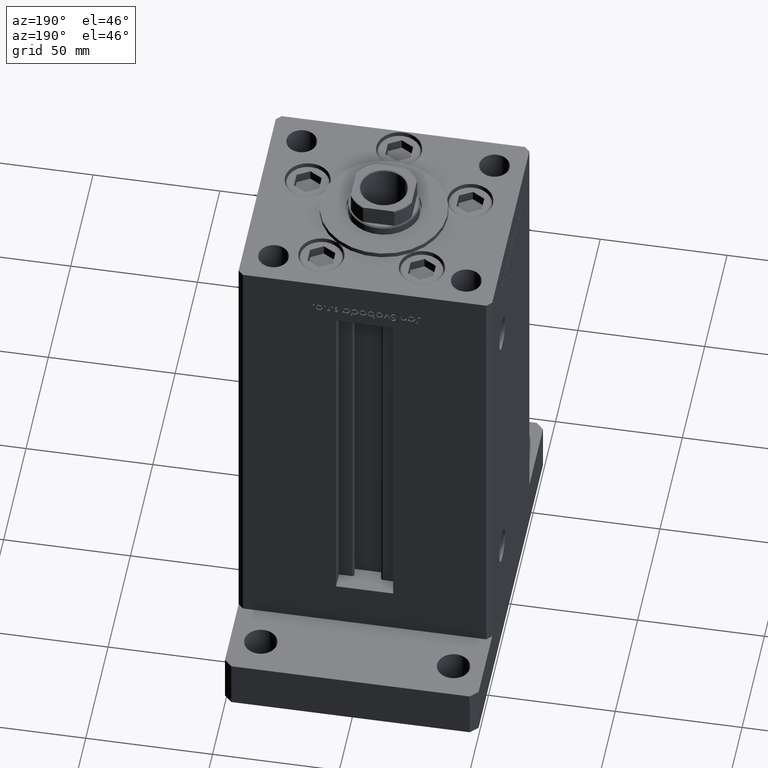
[diagram: clean part render]
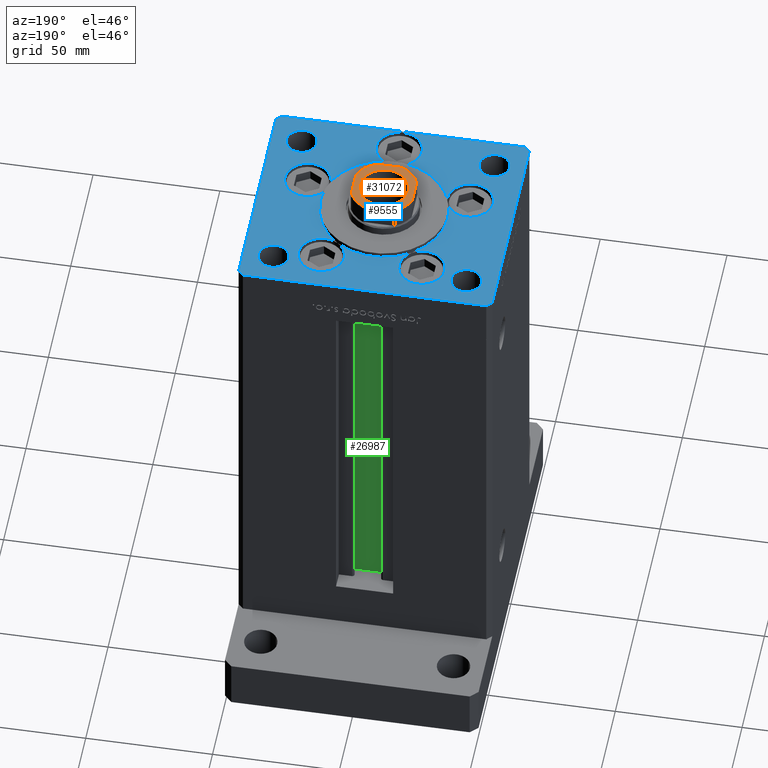
[diagram: same view with three faces highlighted in distinct colors, each labeled with its STEP entity id]
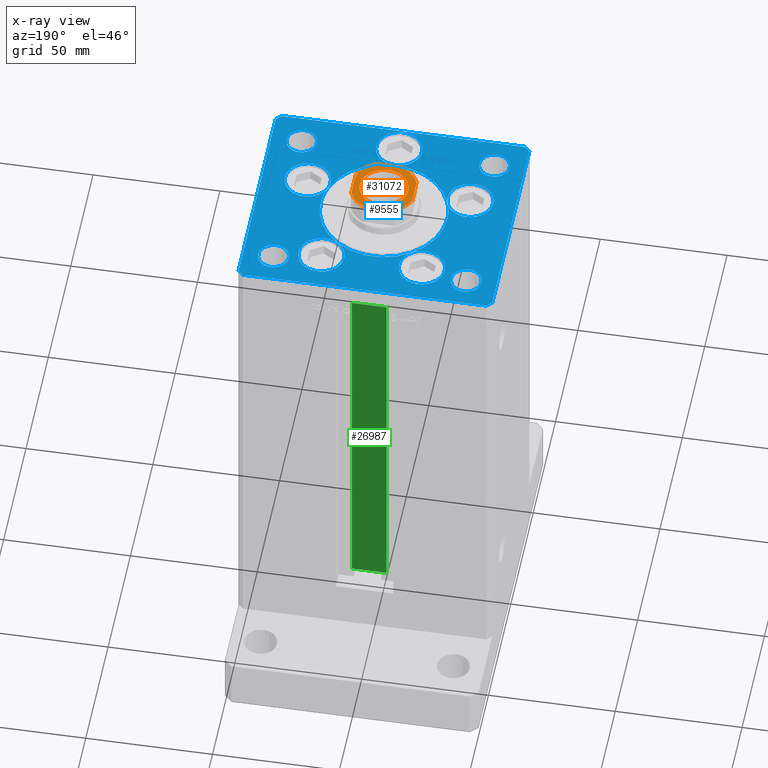
[diagram: x-ray of the same camera — body ghosted, the three highlighted faces saturated]
A machine part, auxiliary view with three faces highlighted in distinct colors.
The next image is the same camera in x-ray (body ghosted, the three faces saturated) — at least one of them is partly hidden behind the body in this view.
Their STEP definitions:

[orange] entity #31072 — the highlighted planar face has unit normal (0, 0, 1).
#331 = CIRCLE ( 'NONE', #11589, 13.00000000000000000 ) ;
#808 = ORIENTED_EDGE ( 'NONE', *, *, #22425, .T. ) ;
#939 = LINE ( 'NONE', #38115, #47083 ) ;
#2775 = ORIENTED_EDGE ( 'NONE', *, *, #20689, .T. ) ;
#3458 = CIRCLE ( 'NONE', #22514, 13.00000000000000000 ) ;
#3721 = VERTEX_POINT ( 'NONE', #23181 ) ;
#4264 = VERTEX_POINT ( 'NONE', #39321 ) ;
#5163 = DIRECTION ( 'NONE',  ( -0.000000000000000000, 0.000000000000000000, 1.000000000000000000 ) ) ;
#5396 = EDGE_CURVE ( 'NONE', #11784, #11824, #7600, .T. ) ;
#5429 = VECTOR ( 'NONE', #20366, 1000.000000000000000 ) ;
#5707 = ORIENTED_EDGE ( 'NONE', *, *, #26100, .T. ) ;
#5768 = CARTESIAN_POINT ( 'NONE',  ( 0.000000000000000000, 0.000000000000000000, 165.2500000000000000 ) ) ;
#5938 = CARTESIAN_POINT ( 'NONE',  ( -11.99999999999999822, -5.000000000000001776, 165.2500000000000000 ) ) ;
#6682 = LINE ( 'NONE', #40078, #42290 ) ;
#6762 = AXIS2_PLACEMENT_3D ( 'NONE', #48075, #7060, #15215 ) ;
#7060 = DIRECTION ( 'NONE',  ( 0.000000000000000000, -0.000000000000000000, -1.000000000000000000 ) ) ;
#7160 = DIRECTION ( 'NONE',  ( 0.000000000000000000, -0.000000000000000000, -1.000000000000000000 ) ) ;
#7600 = LINE ( 'NONE', #32579, #5429 ) ;
#8775 = EDGE_CURVE ( 'NONE', #51252, #11784, #331, .T. ) ;
#8951 = DIRECTION ( 'NONE',  ( 1.000000000000000000, 0.000000000000000000, 0.000000000000000000 ) ) ;
#9096 = CARTESIAN_POINT ( 'NONE',  ( 12.00000000000000000, 12.00000000000000000, 165.2500000000000000 ) ) ;
#9292 = ORIENTED_EDGE ( 'NONE', *, *, #5396, .T. ) ;
#10405 = VERTEX_POINT ( 'NONE', #19918 ) ;
#10638 = CARTESIAN_POINT ( 'NONE',  ( -4.999999999999992895, -12.00000000000000178, 165.2500000000000000 ) ) ;
#11095 = CIRCLE ( 'NONE', #6762, 9.550000000000030909 ) ;
#11249 = ORIENTED_EDGE ( 'NONE', *, *, #32643, .T. ) ;
#11589 = AXIS2_PLACEMENT_3D ( 'NONE', #31882, #15327, #48994 ) ;
#11784 = VERTEX_POINT ( 'NONE', #35258 ) ;
#11824 = VERTEX_POINT ( 'NONE', #5938 ) ;
#12279 = EDGE_LOOP ( 'NONE', ( #9292, #808, #36420, #21751, #11249, #5707, #36146, #35328 ) ) ;
#12836 = CARTESIAN_POINT ( 'NONE',  ( -5.000000000000001776, 11.99999999999999822, 165.2500000000000000 ) ) ;
#13517 = CIRCLE ( 'NONE', #36095, 13.00000000000000000 ) ;
#13906 = DIRECTION ( 'NONE',  ( -0.000000000000000000, 0.000000000000000000, 1.000000000000000000 ) ) ;
#14086 = FACE_OUTER_BOUND ( 'NONE', #12279, .T. ) ;
#15215 = DIRECTION ( 'NONE',  ( 1.000000000000000000, 0.000000000000000000, 0.000000000000000000 ) ) ;
#15327 = DIRECTION ( 'NONE',  ( -0.000000000000000000, 0.000000000000000000, 1.000000000000000000 ) ) ;
#16399 = CARTESIAN_POINT ( 'NONE',  ( 0.000000000000000000, 0.000000000000000000, 165.2500000000000000 ) ) ;
#17519 = LINE ( 'NONE', #9096, #26733 ) ;
#18902 = DIRECTION ( 'NONE',  ( 1.000000000000000000, 7.228014483236695816E-17, 0.000000000000000000 ) ) ;
#19770 = DIRECTION ( 'NONE',  ( 1.000000000000000000, 0.000000000000000000, 0.000000000000000000 ) ) ;
#19918 = CARTESIAN_POINT ( 'NONE',  ( 12.00000000000000178, 4.999999999999994671, 165.2500000000000000 ) ) ;
#19945 = DIRECTION ( 'NONE',  ( -0.000000000000000000, 0.000000000000000000, 1.000000000000000000 ) ) ;
#20366 = DIRECTION ( 'NONE',  ( 7.228014483236695816E-17, -1.000000000000000000, 0.000000000000000000 ) ) ;
#20689 = EDGE_CURVE ( 'NONE', #33343, #41638, #11095, .T. ) ;
#20924 = CARTESIAN_POINT ( 'NONE',  ( 9.550000000000030909, 0.000000000000000000, 165.2500000000000000 ) ) ;
#21304 = DIRECTION ( 'NONE',  ( -1.000000000000000000, -7.228014483236695816E-17, -0.000000000000000000 ) ) ;
#21751 = ORIENTED_EDGE ( 'NONE', *, *, #40463, .T. ) ;
#22332 = DIRECTION ( 'NONE',  ( 1.000000000000000000, 0.000000000000000000, 0.000000000000000000 ) ) ;
#22425 = EDGE_CURVE ( 'NONE', #11824, #24433, #46374, .T. ) ;
#22514 = AXIS2_PLACEMENT_3D ( 'NONE', #16399, #19945, #24546 ) ;
#22697 = AXIS2_PLACEMENT_3D ( 'NONE', #28057, #7160, #45169 ) ;
#23165 = EDGE_LOOP ( 'NONE', ( #2775, #26744 ) ) ;
#23181 = CARTESIAN_POINT ( 'NONE',  ( 4.999999999999993783, -12.00000000000000178, 165.2500000000000000 ) ) ;
#24433 = VERTEX_POINT ( 'NONE', #10638 ) ;
#24546 = DIRECTION ( 'NONE',  ( 1.000000000000000000, 0.000000000000000000, 0.000000000000000000 ) ) ;
#26100 = EDGE_CURVE ( 'NONE', #10405, #31196, #13517, .T. ) ;
#26733 = VECTOR ( 'NONE', #30259, 1000.000000000000000 ) ;
#26744 = ORIENTED_EDGE ( 'NONE', *, *, #46806, .T. ) ;
#27115 = CARTESIAN_POINT ( 'NONE',  ( 5.000000000000002665, 12.00000000000000000, 165.2500000000000000 ) ) ;
#28057 = CARTESIAN_POINT ( 'NONE',  ( 0.000000000000000000, 0.000000000000000000, 165.2500000000000000 ) ) ;
#28698 = CARTESIAN_POINT ( 'NONE',  ( 0.000000000000000000, 0.000000000000000000, 165.2500000000000000 ) ) ;
#29670 = EDGE_CURVE ( 'NONE', #24433, #3721, #6682, .T. ) ;
#30259 = DIRECTION ( 'NONE',  ( -1.445602896647339163E-16, 1.000000000000000000, -0.000000000000000000 ) ) ;
#31072 = ADVANCED_FACE ( 'NONE', ( #46168, #14086 ), #42355, .T. ) ;
#31196 = VERTEX_POINT ( 'NONE', #27115 ) ;
#31882 = CARTESIAN_POINT ( 'NONE',  ( 0.000000000000000000, 0.000000000000000000, 165.2500000000000000 ) ) ;
#32579 = CARTESIAN_POINT ( 'NONE',  ( -11.99999999999999822, 11.99999999999999822, 165.2500000000000000 ) ) ;
#32643 = EDGE_CURVE ( 'NONE', #4264, #10405, #17519, .T. ) ;
#33343 = VERTEX_POINT ( 'NONE', #20924 ) ;
#35258 = CARTESIAN_POINT ( 'NONE',  ( -11.99999999999999822, 5.000000000000000888, 165.2500000000000000 ) ) ;
#35328 = ORIENTED_EDGE ( 'NONE', *, *, #8775, .T. ) ;
#36095 = AXIS2_PLACEMENT_3D ( 'NONE', #28698, #48286, #19770 ) ;
#36146 = ORIENTED_EDGE ( 'NONE', *, *, #50264, .T. ) ;
#36420 = ORIENTED_EDGE ( 'NONE', *, *, #29670, .T. ) ;
#36830 = AXIS2_PLACEMENT_3D ( 'NONE', #5768, #13906, #22332 ) ;
#37478 = CIRCLE ( 'NONE', #22697, 9.550000000000030909 ) ;
#38115 = CARTESIAN_POINT ( 'NONE',  ( -11.99999999999999822, 11.99999999999999822, 165.2500000000000000 ) ) ;
#39321 = CARTESIAN_POINT ( 'NONE',  ( 12.00000000000000178, -4.999999999999990230, 165.2500000000000000 ) ) ;
#40078 = CARTESIAN_POINT ( 'NONE',  ( -11.99999999999999645, -12.00000000000000178, 165.2500000000000000 ) ) ;
#40463 = EDGE_CURVE ( 'NONE', #3721, #4264, #3458, .T. ) ;
#41410 = CARTESIAN_POINT ( 'NONE',  ( -9.550000000000030909, 1.169537693185726108E-15, 165.2500000000000000 ) ) ;
#41638 = VERTEX_POINT ( 'NONE', #41410 ) ;
#42290 = VECTOR ( 'NONE', #18902, 1000.000000000000000 ) ;
#42355 = PLANE ( 'NONE',  #51857 ) ;
#45169 = DIRECTION ( 'NONE',  ( 1.000000000000000000, 0.000000000000000000, 0.000000000000000000 ) ) ;
#46168 = FACE_BOUND ( 'NONE', #23165, .T. ) ;
#46374 = CIRCLE ( 'NONE', #36830, 13.00000000000000000 ) ;
#46806 = EDGE_CURVE ( 'NONE', #41638, #33343, #37478, .T. ) ;
#47083 = VECTOR ( 'NONE', #21304, 1000.000000000000000 ) ;
#48075 = CARTESIAN_POINT ( 'NONE',  ( 0.000000000000000000, 0.000000000000000000, 165.2500000000000000 ) ) ;
#48286 = DIRECTION ( 'NONE',  ( -0.000000000000000000, 0.000000000000000000, 1.000000000000000000 ) ) ;
#48994 = DIRECTION ( 'NONE',  ( 1.000000000000000000, 0.000000000000000000, 0.000000000000000000 ) ) ;
#50264 = EDGE_CURVE ( 'NONE', #31196, #51252, #939, .T. ) ;
#51026 = CARTESIAN_POINT ( 'NONE',  ( 0.000000000000000000, 0.000000000000000000, 165.2500000000000000 ) ) ;
#51252 = VERTEX_POINT ( 'NONE', #12836 ) ;
#51857 = AXIS2_PLACEMENT_3D ( 'NONE', #51026, #5163, #8951 ) ;

[blue] entity #9555 — the highlighted planar face has unit normal (0, 0, 1).
#17 = ORIENTED_EDGE ( 'NONE', *, *, #34929, .F. ) ;
#57 = CARTESIAN_POINT ( 'NONE',  ( 0.000000000000000000, -6.938893903907228378E-15, 0.000000000000000000 ) ) ;
#65 = VERTEX_POINT ( 'NONE', #51462 ) ;
#305 = CARTESIAN_POINT ( 'NONE',  ( 0.000000000000000000, -6.938893903907228378E-15, 0.000000000000000000 ) ) ;
#335 = EDGE_CURVE ( 'NONE', #38180, #53728, #2701, .T. ) ;
#438 = VERTEX_POINT ( 'NONE', #40003 ) ;
#625 = ORIENTED_EDGE ( 'NONE', *, *, #23489, .F. ) ;
#813 = DIRECTION ( 'NONE',  ( 0.000000000000000000, 0.000000000000000000, 1.000000000000000000 ) ) ;
#814 = CARTESIAN_POINT ( 'NONE',  ( -38.00000000000000711, -31.50000000000000711, 0.000000000000000000 ) ) ;
#980 = CIRCLE ( 'NONE', #4481, 25.00000000000000000 ) ;
#1003 = EDGE_LOOP ( 'NONE', ( #37567, #5320, #49569, #28772, #25335, #1979, #28251, #4924, #4704, #44835, #31353, #37233, #25297, #23480, #43868, #625, #34259, #6573, #17, #21617, #44106, #37714 ) ) ;
#1147 = DIRECTION ( 'NONE',  ( 0.000000000000000000, 0.000000000000000000, 1.000000000000000000 ) ) ;
#1504 = EDGE_CURVE ( 'NONE', #12266, #10318, #8767, .T. ) ;
#1559 = FACE_BOUND ( 'NONE', #1003, .T. ) ;
#1639 = VERTEX_POINT ( 'NONE', #19859 ) ;
#1863 = EDGE_CURVE ( 'NONE', #53728, #49649, #980, .T. ) ;
#1979 = ORIENTED_EDGE ( 'NONE', *, *, #46783, .F. ) ;
#2014 = AXIS2_PLACEMENT_3D ( 'NONE', #5255, #21552, #27159 ) ;
#2132 = CARTESIAN_POINT ( 'NONE',  ( -9.000000000000000000, -34.00000000000000000, 0.000000000000000000 ) ) ;
#2330 = VERTEX_POINT ( 'NONE', #17408 ) ;
#2427 = CARTESIAN_POINT ( 'NONE',  ( -44.00000000000001421, -31.50000000000000711, 0.000000000000000000 ) ) ;
#2554 = CARTESIAN_POINT ( 'NONE',  ( -38.00000000000000000, 31.50000000000000000, 0.000000000000000000 ) ) ;
#2655 = EDGE_CURVE ( 'NONE', #24514, #12927, #10520, .T. ) ;
#2701 = CIRCLE ( 'NONE', #12207, 8.999999999999998224 ) ;
#2718 = DIRECTION ( 'NONE',  ( 1.000000000000000000, 0.000000000000000000, 0.000000000000000000 ) ) ;
#3150 = CARTESIAN_POINT ( 'NONE',  ( 0.000000000000000000, -34.00000000000000000, 0.000000000000000000 ) ) ;
#3173 = EDGE_CURVE ( 'NONE', #39180, #49649, #30491, .T. ) ;
#3592 = EDGE_CURVE ( 'NONE', #12927, #24514, #17481, .T. ) ;
#3634 = CARTESIAN_POINT ( 'NONE',  ( 38.00000000000000711, -31.50000000000000711, 0.000000000000000000 ) ) ;
#3807 = CARTESIAN_POINT ( 'NONE',  ( -14.57402977045128978, 20.31249999999999289, 0.000000000000000000 ) ) ;
#4053 = CIRCLE ( 'NONE', #53498, 5.999999999999998224 ) ;
#4115 = CARTESIAN_POINT ( 'NONE',  ( 38.00000000000000711, -31.50000000000000711, 0.000000000000000000 ) ) ;
#4140 = EDGE_CURVE ( 'NONE', #9254, #47599, #9701, .T. ) ;
#4146 = EDGE_CURVE ( 'NONE', #65, #50543, #46428, .T. ) ;
#4481 = AXIS2_PLACEMENT_3D ( 'NONE', #35794, #15172, #24923 ) ;
#4704 = ORIENTED_EDGE ( 'NONE', *, *, #41298, .F. ) ;
#4718 = EDGE_CURVE ( 'NONE', #16022, #37456, #25126, .T. ) ;
#4915 = DIRECTION ( 'NONE',  ( 1.000000000000000000, 0.000000000000000000, 0.000000000000000000 ) ) ;
#4924 = ORIENTED_EDGE ( 'NONE', *, *, #22982, .F. ) ;
#5117 = VECTOR ( 'NONE', #47022, 1000.000000000000000 ) ;
#5177 = CARTESIAN_POINT ( 'NONE',  ( 41.05550741379015989, -11.33333333333332860, 0.000000000000000000 ) ) ;
#5255 = CARTESIAN_POINT ( 'NONE',  ( 19.82068048781374969, 27.62499999999998934, 0.000000000000000000 ) ) ;
#5320 = ORIENTED_EDGE ( 'NONE', *, *, #335, .F. ) ;
#5577 = AXIS2_PLACEMENT_3D ( 'NONE', #20723, #50035, #41087 ) ;
#5823 = EDGE_CURVE ( 'NONE', #50543, #2330, #26210, .T. ) ;
#5881 = CIRCLE ( 'NONE', #32793, 9.000000000000001776 ) ;
#5895 = CARTESIAN_POINT ( 'NONE',  ( 0.000000000000000000, -25.00000000000000000, 0.000000000000000000 ) ) ;
#6073 = AXIS2_PLACEMENT_3D ( 'NONE', #814, #33126, #49699 ) ;
#6325 = DIRECTION ( 'NONE',  ( 1.000000000000000000, 0.000000000000000000, 0.000000000000000000 ) ) ;
#6382 = AXIS2_PLACEMENT_3D ( 'NONE', #3150, #40333, #7207 ) ;
#6427 = FACE_BOUND ( 'NONE', #35781, .T. ) ;
#6573 = ORIENTED_EDGE ( 'NONE', *, *, #1504, .F. ) ;
#6773 = EDGE_CURVE ( 'NONE', #20424, #36654, #15634, .T. ) ;
#7023 = CARTESIAN_POINT ( 'NONE',  ( -50.00000000000000711, 41.49999999999999289, 0.000000000000000000 ) ) ;
#7147 = DIRECTION ( 'NONE',  ( 1.000000000000000000, 0.000000000000000000, 0.000000000000000000 ) ) ;
#7207 = DIRECTION ( 'NONE',  ( 1.000000000000000000, 0.000000000000000000, 0.000000000000000000 ) ) ;
#7290 = DIRECTION ( 'NONE',  ( 0.000000000000000000, 0.000000000000000000, 1.000000000000000000 ) ) ;
#7380 = CIRCLE ( 'NONE', #36825, 25.00000000000000000 ) ;
#7421 = CIRCLE ( 'NONE', #41215, 9.000000000000001776 ) ;
#7664 = VERTEX_POINT ( 'NONE', #19736 ) ;
#7731 = EDGE_LOOP ( 'NONE', ( #9102, #9841, #35362, #50059, #7985, #33713, #24831, #13891 ) ) ;
#7985 = ORIENTED_EDGE ( 'NONE', *, *, #34742, .T. ) ;
#8601 = AXIS2_PLACEMENT_3D ( 'NONE', #36094, #35823, #2718 ) ;
#8767 = CIRCLE ( 'NONE', #36514, 25.00000000000000000 ) ;
#9102 = ORIENTED_EDGE ( 'NONE', *, *, #46603, .T. ) ;
#9122 = CARTESIAN_POINT ( 'NONE',  ( 50.00000000000000000, -41.49999999999992895, 0.000000000000000000 ) ) ;
#9242 = EDGE_CURVE ( 'NONE', #44659, #18760, #37632, .T. ) ;
#9254 = VERTEX_POINT ( 'NONE', #5177 ) ;
#9385 = CARTESIAN_POINT ( 'NONE',  ( 32.05550741379015989, -11.33333333333332860, 0.000000000000000000 ) ) ;
#9462 = DIRECTION ( 'NONE',  ( 1.000000000000000000, 0.000000000000000000, 0.000000000000000000 ) ) ;
#9555 = ADVANCED_FACE ( 'NONE', ( #1559, #15123, #19752, #6427, #22997, #43914 ), #28148, .T. ) ;
#9701 = CIRCLE ( 'NONE', #28812, 9.000000000000001776 ) ;
#9841 = ORIENTED_EDGE ( 'NONE', *, *, #38617, .T. ) ;
#9945 = CIRCLE ( 'NONE', #34219, 9.000000000000000000 ) ;
#10158 = CARTESIAN_POINT ( 'NONE',  ( 38.00000000000000000, 31.50000000000000000, 0.000000000000000000 ) ) ;
#10318 = VERTEX_POINT ( 'NONE', #15565 ) ;
#10520 = CIRCLE ( 'NONE', #16649, 5.999999999999998224 ) ;
#10541 = CARTESIAN_POINT ( 'NONE',  ( -32.05550741379015989, -11.33333333333332860, 0.000000000000000000 ) ) ;
#10639 = DIRECTION ( 'NONE',  ( 1.000000000000000000, 0.000000000000000000, 0.000000000000000000 ) ) ;
#11036 = CARTESIAN_POINT ( 'NONE',  ( 0.000000000000000000, 0.000000000000000000, 0.000000000000000000 ) ) ;
#11235 = CARTESIAN_POINT ( 'NONE',  ( 23.57022603955158502, -8.333333333333332149, 0.000000000000000000 ) ) ;
#11307 = DIRECTION ( 'NONE',  ( -0.000000000000000000, 0.000000000000000000, 1.000000000000000000 ) ) ;
#11320 = EDGE_CURVE ( 'NONE', #49649, #15891, #29004, .T. ) ;
#11625 = CARTESIAN_POINT ( 'NONE',  ( -38.00000000000000711, -31.50000000000000711, 0.000000000000000000 ) ) ;
#11978 = EDGE_CURVE ( 'NONE', #438, #45038, #49009, .T. ) ;
#12207 = AXIS2_PLACEMENT_3D ( 'NONE', #39449, #51681, #6325 ) ;
#12266 = VERTEX_POINT ( 'NONE', #18500 ) ;
#12458 = EDGE_CURVE ( 'NONE', #7664, #39937, #35100, .T. ) ;
#12505 = EDGE_CURVE ( 'NONE', #10318, #18760, #7380, .T. ) ;
#12927 = VERTEX_POINT ( 'NONE', #47428 ) ;
#13094 = ORIENTED_EDGE ( 'NONE', *, *, #2655, .T. ) ;
#13397 = CARTESIAN_POINT ( 'NONE',  ( 25.00000000000000000, -3.877276906038844941E-15, 0.000000000000000000 ) ) ;
#13422 = LINE ( 'NONE', #16973, #21008 ) ;
#13621 = EDGE_CURVE ( 'NONE', #27024, #44659, #40244, .T. ) ;
#13826 = CIRCLE ( 'NONE', #37253, 9.000000000000001776 ) ;
#13891 = ORIENTED_EDGE ( 'NONE', *, *, #4718, .T. ) ;
#14722 = CARTESIAN_POINT ( 'NONE',  ( -19.82068048781374969, 27.62499999999998934, 0.000000000000000000 ) ) ;
#14766 = EDGE_CURVE ( 'NONE', #39937, #7664, #25493, .T. ) ;
#14778 = DIRECTION ( 'NONE',  ( 1.000000000000000000, 0.000000000000000000, 0.000000000000000000 ) ) ;
#15123 = FACE_BOUND ( 'NONE', #31647, .T. ) ;
#15166 = CIRCLE ( 'NONE', #45534, 25.00000000000000000 ) ;
#15172 = DIRECTION ( 'NONE',  ( 0.000000000000000000, 0.000000000000000000, 1.000000000000000000 ) ) ;
#15214 = CARTESIAN_POINT ( 'NONE',  ( 38.00000000000000000, 31.50000000000000000, 0.000000000000000000 ) ) ;
#15311 = DIRECTION ( 'NONE',  ( 0.000000000000000000, 0.000000000000000000, 1.000000000000000000 ) ) ;
#15565 = CARTESIAN_POINT ( 'NONE',  ( -23.57022603955158502, -8.333333333333332149, 0.000000000000000000 ) ) ;
#15634 = LINE ( 'NONE', #36531, #26256 ) ;
#15734 = AXIS2_PLACEMENT_3D ( 'NONE', #33673, #41036, #29343 ) ;
#15844 = CARTESIAN_POINT ( 'NONE',  ( 0.000000000000000000, -6.938893903907228378E-15, 0.000000000000000000 ) ) ;
#15891 = VERTEX_POINT ( 'NONE', #42890 ) ;
#16022 = VERTEX_POINT ( 'NONE', #7023 ) ;
#16384 = DIRECTION ( 'NONE',  ( -1.000000000000000000, 0.000000000000000000, 0.000000000000000000 ) ) ;
#16649 = AXIS2_PLACEMENT_3D ( 'NONE', #33507, #29690, #17210 ) ;
#16674 = VECTOR ( 'NONE', #41158, 1000.000000000000000 ) ;
#16973 = CARTESIAN_POINT ( 'NONE',  ( -49.99999999999999289, -41.50000000000000000, 0.000000000000000000 ) ) ;
#17210 = DIRECTION ( 'NONE',  ( -1.000000000000000000, 0.000000000000000000, 0.000000000000000000 ) ) ;
#17256 = LINE ( 'NONE', #33809, #51935 ) ;
#17408 = CARTESIAN_POINT ( 'NONE',  ( 50.00000000000000000, 41.50000000000000711, 0.000000000000000000 ) ) ;
#17481 = CIRCLE ( 'NONE', #49594, 5.999999999999998224 ) ;
#17749 = AXIS2_PLACEMENT_3D ( 'NONE', #4115, #25003, #48921 ) ;
#18225 = LINE ( 'NONE', #21512, #5117 ) ;
#18357 = AXIS2_PLACEMENT_3D ( 'NONE', #24176, #28775, #49683 ) ;
#18469 = ORIENTED_EDGE ( 'NONE', *, *, #3592, .T. ) ;
#18488 = ORIENTED_EDGE ( 'NONE', *, *, #27292, .F. ) ;
#18500 = CARTESIAN_POINT ( 'NONE',  ( -25.00000000000000000, -6.938893903907228378E-15, 0.000000000000000000 ) ) ;
#18760 = VERTEX_POINT ( 'NONE', #5895 ) ;
#18926 = DIRECTION ( 'NONE',  ( 0.000000000000000000, 0.000000000000000000, 1.000000000000000000 ) ) ;
#19395 = AXIS2_PLACEMENT_3D ( 'NONE', #41913, #25871, #42446 ) ;
#19438 = AXIS2_PLACEMENT_3D ( 'NONE', #11036, #11307, #47981 ) ;
#19736 = CARTESIAN_POINT ( 'NONE',  ( 32.00000000000000000, -31.50000000000000711, 0.000000000000000000 ) ) ;
#19752 = FACE_BOUND ( 'NONE', #49862, .T. ) ;
#19859 = CARTESIAN_POINT ( 'NONE',  ( -23.05550741379015633, -11.33333333333332860, 0.000000000000000000 ) ) ;
#19914 = DIRECTION ( 'NONE',  ( 0.000000000000000000, 0.000000000000000000, 1.000000000000000000 ) ) ;
#20364 = AXIS2_PLACEMENT_3D ( 'NONE', #40108, #18926, #37035 ) ;
#20424 = VERTEX_POINT ( 'NONE', #25292 ) ;
#20723 = CARTESIAN_POINT ( 'NONE',  ( -19.82068048781374969, 27.62499999999998934, 0.000000000000000000 ) ) ;
#20787 = CARTESIAN_POINT ( 'NONE',  ( -49.99999999999999289, -41.50000000000000000, 0.000000000000000000 ) ) ;
#21008 = VECTOR ( 'NONE', #50351, 1000.000000000000114 ) ;
#21213 = DIRECTION ( 'NONE',  ( 0.000000000000000000, 0.000000000000000000, 1.000000000000000000 ) ) ;
#21252 = AXIS2_PLACEMENT_3D ( 'NONE', #11625, #7290, #52905 ) ;
#21512 = CARTESIAN_POINT ( 'NONE',  ( -48.00000000000000711, -43.50000000000002842, 0.000000000000000000 ) ) ;
#21552 = DIRECTION ( 'NONE',  ( 0.000000000000000000, 0.000000000000000000, 1.000000000000000000 ) ) ;
#21617 = ORIENTED_EDGE ( 'NONE', *, *, #3173, .F. ) ;
#21876 = ORIENTED_EDGE ( 'NONE', *, *, #40394, .F. ) ;
#22618 = EDGE_CURVE ( 'NONE', #18760, #47599, #15166, .T. ) ;
#22815 = DIRECTION ( 'NONE',  ( 1.000000000000000000, 0.000000000000000000, 0.000000000000000000 ) ) ;
#22982 = EDGE_CURVE ( 'NONE', #44694, #9254, #28185, .T. ) ;
#22997 = FACE_OUTER_BOUND ( 'NONE', #7731, .T. ) ;
#23057 = DIRECTION ( 'NONE',  ( 1.000000000000000000, 0.000000000000000000, 0.000000000000000000 ) ) ;
#23090 = DIRECTION ( 'NONE',  ( 0.000000000000000000, 0.000000000000000000, 1.000000000000000000 ) ) ;
#23125 = DIRECTION ( 'NONE',  ( 0.000000000000000000, 0.000000000000000000, 1.000000000000000000 ) ) ;
#23151 = ORIENTED_EDGE ( 'NONE', *, *, #14766, .T. ) ;
#23241 = EDGE_CURVE ( 'NONE', #15891, #39180, #9945, .T. ) ;
#23480 = ORIENTED_EDGE ( 'NONE', *, *, #12505, .F. ) ;
#23489 = EDGE_CURVE ( 'NONE', #24228, #1639, #7421, .T. ) ;
#23564 = VERTEX_POINT ( 'NONE', #23625 ) ;
#23625 = CARTESIAN_POINT ( 'NONE',  ( 28.82068048781374969, 27.62499999999998934, 0.000000000000000000 ) ) ;
#23778 = EDGE_LOOP ( 'NONE', ( #23151, #49199 ) ) ;
#24138 = CARTESIAN_POINT ( 'NONE',  ( 44.00000000000001421, -31.50000000000000711, 0.000000000000000000 ) ) ;
#24176 = CARTESIAN_POINT ( 'NONE',  ( -19.82068048781374969, 27.62499999999998934, 0.000000000000000000 ) ) ;
#24228 = VERTEX_POINT ( 'NONE', #35977 ) ;
#24514 = VERTEX_POINT ( 'NONE', #48133 ) ;
#24541 = CIRCLE ( 'NONE', #2014, 8.999999999999998224 ) ;
#24711 = CARTESIAN_POINT ( 'NONE',  ( -48.00000000000000000, 43.49999999999997868, 0.000000000000000000 ) ) ;
#24831 = ORIENTED_EDGE ( 'NONE', *, *, #29132, .T. ) ;
#24923 = DIRECTION ( 'NONE',  ( 1.000000000000000000, 0.000000000000000000, 0.000000000000000000 ) ) ;
#25003 = DIRECTION ( 'NONE',  ( -0.000000000000000000, -0.000000000000000000, -1.000000000000000000 ) ) ;
#25126 = LINE ( 'NONE', #49309, #16674 ) ;
#25217 = CIRCLE ( 'NONE', #46058, 8.999999999999998224 ) ;
#25292 = CARTESIAN_POINT ( 'NONE',  ( 47.99999999999999289, 43.50000000000000000, 0.000000000000000000 ) ) ;
#25297 = ORIENTED_EDGE ( 'NONE', *, *, #51674, .F. ) ;
#25335 = ORIENTED_EDGE ( 'NONE', *, *, #45815, .F. ) ;
#25493 = CIRCLE ( 'NONE', #39363, 6.000000000000005329 ) ;
#25771 = CARTESIAN_POINT ( 'NONE',  ( 48.00000000000000711, -43.49999999999992184, 0.000000000000000000 ) ) ;
#25793 = DIRECTION ( 'NONE',  ( 0.000000000000000000, 0.000000000000000000, 1.000000000000000000 ) ) ;
#25871 = DIRECTION ( 'NONE',  ( 0.000000000000000000, 0.000000000000000000, 1.000000000000000000 ) ) ;
#26210 = LINE ( 'NONE', #9122, #52264 ) ;
#26256 = VECTOR ( 'NONE', #32994, 1000.000000000000000 ) ;
#27024 = VERTEX_POINT ( 'NONE', #2132 ) ;
#27159 = DIRECTION ( 'NONE',  ( 1.000000000000000000, 0.000000000000000000, 0.000000000000000000 ) ) ;
#27292 = EDGE_CURVE ( 'NONE', #46059, #53198, #4053, .T. ) ;
#27394 = DIRECTION ( 'NONE',  ( 0.000000000000000000, 0.000000000000000000, 1.000000000000000000 ) ) ;
#27750 = AXIS2_PLACEMENT_3D ( 'NONE', #9385, #42527, #30293 ) ;
#28033 = ORIENTED_EDGE ( 'NONE', *, *, #11978, .F. ) ;
#28148 = PLANE ( 'NONE',  #19438 ) ;
#28185 = CIRCLE ( 'NONE', #20364, 9.000000000000001776 ) ;
#28251 = ORIENTED_EDGE ( 'NONE', *, *, #4140, .F. ) ;
#28772 = ORIENTED_EDGE ( 'NONE', *, *, #49601, .F. ) ;
#28775 = DIRECTION ( 'NONE',  ( 0.000000000000000000, 0.000000000000000000, 1.000000000000000000 ) ) ;
#28805 = DIRECTION ( 'NONE',  ( 1.000000000000000000, 0.000000000000000000, 0.000000000000000000 ) ) ;
#28812 = AXIS2_PLACEMENT_3D ( 'NONE', #46947, #813, #9462 ) ;
#29004 = CIRCLE ( 'NONE', #5577, 9.000000000000000000 ) ;
#29132 = EDGE_CURVE ( 'NONE', #36654, #16022, #32332, .T. ) ;
#29265 = CARTESIAN_POINT ( 'NONE',  ( -28.82068048781374969, 27.62499999999998934, 0.000000000000000000 ) ) ;
#29343 = DIRECTION ( 'NONE',  ( 1.000000000000000000, 0.000000000000000000, 0.000000000000000000 ) ) ;
#29690 = DIRECTION ( 'NONE',  ( -0.000000000000000000, -0.000000000000000000, -1.000000000000000000 ) ) ;
#29757 = DIRECTION ( 'NONE',  ( 0.000000000000000000, 1.000000000000000000, 0.000000000000000000 ) ) ;
#30293 = DIRECTION ( 'NONE',  ( 1.000000000000000000, 0.000000000000000000, 0.000000000000000000 ) ) ;
#30491 = CIRCLE ( 'NONE', #18357, 9.000000000000000000 ) ;
#31273 = EDGE_CURVE ( 'NONE', #1639, #10318, #5881, .T. ) ;
#31353 = ORIENTED_EDGE ( 'NONE', *, *, #9242, .F. ) ;
#31496 = DIRECTION ( 'NONE',  ( 0.000000000000000000, 0.000000000000000000, 1.000000000000000000 ) ) ;
#31647 = EDGE_LOOP ( 'NONE', ( #18469, #13094 ) ) ;
#32332 = LINE ( 'NONE', #44560, #36172 ) ;
#32398 = DIRECTION ( 'NONE',  ( -1.000000000000000000, 0.000000000000000000, 0.000000000000000000 ) ) ;
#32726 = CARTESIAN_POINT ( 'NONE',  ( 32.00000000000000000, 31.50000000000000000, 0.000000000000000000 ) ) ;
#32793 = AXIS2_PLACEMENT_3D ( 'NONE', #10541, #27394, #23057 ) ;
#32994 = DIRECTION ( 'NONE',  ( -1.000000000000000000, -2.168404344971008868E-16, 0.000000000000000000 ) ) ;
#33126 = DIRECTION ( 'NONE',  ( 0.000000000000000000, 0.000000000000000000, 1.000000000000000000 ) ) ;
#33507 = CARTESIAN_POINT ( 'NONE',  ( -38.00000000000000000, 31.50000000000000000, 0.000000000000000000 ) ) ;
#33673 = CARTESIAN_POINT ( 'NONE',  ( 0.000000000000000000, -6.938893903907228378E-15, 0.000000000000000000 ) ) ;
#33713 = ORIENTED_EDGE ( 'NONE', *, *, #6773, .T. ) ;
#33809 = CARTESIAN_POINT ( 'NONE',  ( 50.00000000000000000, 41.50000000000000711, 0.000000000000000000 ) ) ;
#34219 = AXIS2_PLACEMENT_3D ( 'NONE', #14722, #47859, #10639 ) ;
#34259 = ORIENTED_EDGE ( 'NONE', *, *, #36216, .F. ) ;
#34666 = CIRCLE ( 'NONE', #27750, 9.000000000000001776 ) ;
#34742 = EDGE_CURVE ( 'NONE', #2330, #20424, #17256, .T. ) ;
#34929 = EDGE_CURVE ( 'NONE', #49649, #12266, #39623, .T. ) ;
#35100 = CIRCLE ( 'NONE', #17749, 6.000000000000005329 ) ;
#35362 = ORIENTED_EDGE ( 'NONE', *, *, #4146, .T. ) ;
#35411 = DIRECTION ( 'NONE',  ( 0.000000000000000000, 0.000000000000000000, 1.000000000000000000 ) ) ;
#35662 = CARTESIAN_POINT ( 'NONE',  ( -48.00000000000000711, -43.50000000000002842, 0.000000000000000000 ) ) ;
#35781 = EDGE_LOOP ( 'NONE', ( #28033, #46715 ) ) ;
#35794 = CARTESIAN_POINT ( 'NONE',  ( 0.000000000000000000, -6.938893903907228378E-15, 0.000000000000000000 ) ) ;
#35823 = DIRECTION ( 'NONE',  ( 0.000000000000000000, 0.000000000000000000, 1.000000000000000000 ) ) ;
#35977 = CARTESIAN_POINT ( 'NONE',  ( -41.05550741379015989, -11.33333333333332682, 0.000000000000000000 ) ) ;
#36094 = CARTESIAN_POINT ( 'NONE',  ( 0.000000000000000000, -6.938893903907228378E-15, 0.000000000000000000 ) ) ;
#36172 = VECTOR ( 'NONE', #43754, 1000.000000000000000 ) ;
#36216 = EDGE_CURVE ( 'NONE', #10318, #24228, #13826, .T. ) ;
#36387 = CIRCLE ( 'NONE', #45084, 5.999999999999998224 ) ;
#36514 = AXIS2_PLACEMENT_3D ( 'NONE', #51896, #23125, #46751 ) ;
#36531 = CARTESIAN_POINT ( 'NONE',  ( 47.99999999999999289, 43.50000000000000000, 0.000000000000000000 ) ) ;
#36587 = VECTOR ( 'NONE', #43137, 1000.000000000000114 ) ;
#36654 = VERTEX_POINT ( 'NONE', #24711 ) ;
#36825 = AXIS2_PLACEMENT_3D ( 'NONE', #305, #36952, #28805 ) ;
#36952 = DIRECTION ( 'NONE',  ( 0.000000000000000000, 0.000000000000000000, 1.000000000000000000 ) ) ;
#37035 = DIRECTION ( 'NONE',  ( 1.000000000000000000, 0.000000000000000000, 0.000000000000000000 ) ) ;
#37233 = ORIENTED_EDGE ( 'NONE', *, *, #13621, .F. ) ;
#37253 = AXIS2_PLACEMENT_3D ( 'NONE', #43260, #19914, #7147 ) ;
#37456 = VERTEX_POINT ( 'NONE', #20787 ) ;
#37567 = ORIENTED_EDGE ( 'NONE', *, *, #1863, .F. ) ;
#37632 = CIRCLE ( 'NONE', #41979, 9.000000000000000000 ) ;
#37714 = ORIENTED_EDGE ( 'NONE', *, *, #11320, .F. ) ;
#38180 = VERTEX_POINT ( 'NONE', #45632 ) ;
#38325 = CARTESIAN_POINT ( 'NONE',  ( 19.82068048781374969, 27.62499999999998934, 0.000000000000000000 ) ) ;
#38617 = EDGE_CURVE ( 'NONE', #44482, #65, #18225, .T. ) ;
#38884 = DIRECTION ( 'NONE',  ( -0.7071067811865512365, 0.7071067811865439090, 0.000000000000000000 ) ) ;
#39126 = DIRECTION ( 'NONE',  ( 1.000000000000000000, 0.000000000000000000, 0.000000000000000000 ) ) ;
#39180 = VERTEX_POINT ( 'NONE', #29265 ) ;
#39363 = AXIS2_PLACEMENT_3D ( 'NONE', #3634, #44369, #16384 ) ;
#39449 = CARTESIAN_POINT ( 'NONE',  ( 19.82068048781374969, 27.62499999999998934, 0.000000000000000000 ) ) ;
#39623 = CIRCLE ( 'NONE', #8601, 25.00000000000000000 ) ;
#39639 = DIRECTION ( 'NONE',  ( 1.000000000000000000, 0.000000000000000000, 0.000000000000000000 ) ) ;
#39937 = VERTEX_POINT ( 'NONE', #24138 ) ;
#40003 = CARTESIAN_POINT ( 'NONE',  ( -32.00000000000000000, -31.50000000000000711, 0.000000000000000000 ) ) ;
#40108 = CARTESIAN_POINT ( 'NONE',  ( 32.05550741379015989, -11.33333333333332860, 0.000000000000000000 ) ) ;
#40244 = CIRCLE ( 'NONE', #6382, 9.000000000000000000 ) ;
#40275 = DIRECTION ( 'NONE',  ( -0.000000000000000000, -0.000000000000000000, -1.000000000000000000 ) ) ;
#40333 = DIRECTION ( 'NONE',  ( 0.000000000000000000, 0.000000000000000000, 1.000000000000000000 ) ) ;
#40394 = EDGE_CURVE ( 'NONE', #53198, #46059, #36387, .T. ) ;
#41036 = DIRECTION ( 'NONE',  ( 0.000000000000000000, 0.000000000000000000, 1.000000000000000000 ) ) ;
#41052 = CARTESIAN_POINT ( 'NONE',  ( 14.57402977045128623, 20.31249999999998579, 0.000000000000000000 ) ) ;
#41087 = DIRECTION ( 'NONE',  ( 1.000000000000000000, 0.000000000000000000, 0.000000000000000000 ) ) ;
#41158 = DIRECTION ( 'NONE',  ( 1.672022627447525486E-16, -1.000000000000000000, 0.000000000000000000 ) ) ;
#41215 = AXIS2_PLACEMENT_3D ( 'NONE', #43447, #23090, #39639 ) ;
#41298 = EDGE_CURVE ( 'NONE', #47599, #44694, #34666, .T. ) ;
#41913 = CARTESIAN_POINT ( 'NONE',  ( 0.000000000000000000, -34.00000000000000000, 0.000000000000000000 ) ) ;
#41979 = AXIS2_PLACEMENT_3D ( 'NONE', #45391, #25793, #4915 ) ;
#42250 = EDGE_CURVE ( 'NONE', #45038, #438, #50310, .T. ) ;
#42446 = DIRECTION ( 'NONE',  ( 1.000000000000000000, 0.000000000000000000, 0.000000000000000000 ) ) ;
#42527 = DIRECTION ( 'NONE',  ( 0.000000000000000000, 0.000000000000000000, 1.000000000000000000 ) ) ;
#42679 = CARTESIAN_POINT ( 'NONE',  ( 9.000000000000000000, -34.00000000000000000, 0.000000000000000000 ) ) ;
#42778 = CIRCLE ( 'NONE', #19395, 9.000000000000000000 ) ;
#42890 = CARTESIAN_POINT ( 'NONE',  ( -10.82068048781375147, 27.62499999999998934, 0.000000000000000000 ) ) ;
#42947 = CARTESIAN_POINT ( 'NONE',  ( 50.00000000000000000, -41.49999999999992895, 0.000000000000000000 ) ) ;
#43137 = DIRECTION ( 'NONE',  ( 0.7071067811865474617, 0.7071067811865474617, 0.000000000000000000 ) ) ;
#43260 = CARTESIAN_POINT ( 'NONE',  ( -32.05550741379015989, -11.33333333333332860, 0.000000000000000000 ) ) ;
#43447 = CARTESIAN_POINT ( 'NONE',  ( -32.05550741379015989, -11.33333333333332860, 0.000000000000000000 ) ) ;
#43754 = DIRECTION ( 'NONE',  ( -0.7071067811865524577, -0.7071067811865426878, 0.000000000000000000 ) ) ;
#43868 = ORIENTED_EDGE ( 'NONE', *, *, #31273, .F. ) ;
#43914 = FACE_BOUND ( 'NONE', #23778, .T. ) ;
#44106 = ORIENTED_EDGE ( 'NONE', *, *, #23241, .F. ) ;
#44363 = DIRECTION ( 'NONE',  ( 1.000000000000000000, 0.000000000000000000, 0.000000000000000000 ) ) ;
#44369 = DIRECTION ( 'NONE',  ( -0.000000000000000000, -0.000000000000000000, -1.000000000000000000 ) ) ;
#44482 = VERTEX_POINT ( 'NONE', #35662 ) ;
#44560 = CARTESIAN_POINT ( 'NONE',  ( -48.00000000000000000, 43.49999999999997868, 0.000000000000000000 ) ) ;
#44650 = EDGE_CURVE ( 'NONE', #23564, #38180, #25217, .T. ) ;
#44659 = VERTEX_POINT ( 'NONE', #42679 ) ;
#44694 = VERTEX_POINT ( 'NONE', #52444 ) ;
#44835 = ORIENTED_EDGE ( 'NONE', *, *, #22618, .F. ) ;
#45038 = VERTEX_POINT ( 'NONE', #2427 ) ;
#45084 = AXIS2_PLACEMENT_3D ( 'NONE', #10158, #35411, #14778 ) ;
#45391 = CARTESIAN_POINT ( 'NONE',  ( 0.000000000000000000, -34.00000000000000000, 0.000000000000000000 ) ) ;
#45534 = AXIS2_PLACEMENT_3D ( 'NONE', #57, #21213, #50256 ) ;
#45632 = CARTESIAN_POINT ( 'NONE',  ( 10.82068048781375147, 27.62499999999998934, 0.000000000000000000 ) ) ;
#45815 = EDGE_CURVE ( 'NONE', #52277, #53728, #46972, .T. ) ;
#46058 = AXIS2_PLACEMENT_3D ( 'NONE', #38325, #1147, #39126 ) ;
#46059 = VERTEX_POINT ( 'NONE', #53720 ) ;
#46428 = LINE ( 'NONE', #25771, #36587 ) ;
#46603 = EDGE_CURVE ( 'NONE', #37456, #44482, #13422, .T. ) ;
#46715 = ORIENTED_EDGE ( 'NONE', *, *, #42250, .F. ) ;
#46751 = DIRECTION ( 'NONE',  ( 1.000000000000000000, 0.000000000000000000, 0.000000000000000000 ) ) ;
#46783 = EDGE_CURVE ( 'NONE', #47599, #52277, #50444, .T. ) ;
#46947 = CARTESIAN_POINT ( 'NONE',  ( 32.05550741379015989, -11.33333333333332860, 0.000000000000000000 ) ) ;
#46972 = CIRCLE ( 'NONE', #15734, 25.00000000000000000 ) ;
#47022 = DIRECTION ( 'NONE',  ( 1.000000000000000000, 1.156482317317871331E-15, 0.000000000000000000 ) ) ;
#47428 = CARTESIAN_POINT ( 'NONE',  ( -32.00000000000000000, 31.50000000000000000, 0.000000000000000000 ) ) ;
#47599 = VERTEX_POINT ( 'NONE', #11235 ) ;
#47859 = DIRECTION ( 'NONE',  ( 0.000000000000000000, 0.000000000000000000, 1.000000000000000000 ) ) ;
#47981 = DIRECTION ( 'NONE',  ( 1.000000000000000000, 0.000000000000000000, 0.000000000000000000 ) ) ;
#48133 = CARTESIAN_POINT ( 'NONE',  ( -44.00000000000000000, 31.50000000000000000, 0.000000000000000000 ) ) ;
#48921 = DIRECTION ( 'NONE',  ( -1.000000000000000000, 0.000000000000000000, 0.000000000000000000 ) ) ;
#49009 = CIRCLE ( 'NONE', #21252, 6.000000000000005329 ) ;
#49199 = ORIENTED_EDGE ( 'NONE', *, *, #12458, .T. ) ;
#49309 = CARTESIAN_POINT ( 'NONE',  ( -50.00000000000000711, 41.49999999999999289, 0.000000000000000000 ) ) ;
#49569 = ORIENTED_EDGE ( 'NONE', *, *, #44650, .F. ) ;
#49594 = AXIS2_PLACEMENT_3D ( 'NONE', #2554, #40275, #32398 ) ;
#49601 = EDGE_CURVE ( 'NONE', #53728, #23564, #24541, .T. ) ;
#49611 = AXIS2_PLACEMENT_3D ( 'NONE', #15844, #15311, #44363 ) ;
#49649 = VERTEX_POINT ( 'NONE', #3807 ) ;
#49683 = DIRECTION ( 'NONE',  ( 1.000000000000000000, 0.000000000000000000, 0.000000000000000000 ) ) ;
#49699 = DIRECTION ( 'NONE',  ( 1.000000000000000000, 0.000000000000000000, 0.000000000000000000 ) ) ;
#49862 = EDGE_LOOP ( 'NONE', ( #18488, #21876 ) ) ;
#50035 = DIRECTION ( 'NONE',  ( 0.000000000000000000, 0.000000000000000000, 1.000000000000000000 ) ) ;
#50059 = ORIENTED_EDGE ( 'NONE', *, *, #5823, .T. ) ;
#50256 = DIRECTION ( 'NONE',  ( 1.000000000000000000, 0.000000000000000000, 0.000000000000000000 ) ) ;
#50310 = CIRCLE ( 'NONE', #6073, 6.000000000000005329 ) ;
#50351 = DIRECTION ( 'NONE',  ( 0.7071067811865402453, -0.7071067811865549002, 0.000000000000000000 ) ) ;
#50444 = CIRCLE ( 'NONE', #49611, 25.00000000000000000 ) ;
#50543 = VERTEX_POINT ( 'NONE', #42947 ) ;
#51462 = CARTESIAN_POINT ( 'NONE',  ( 48.00000000000000711, -43.49999999999992184, 0.000000000000000000 ) ) ;
#51674 = EDGE_CURVE ( 'NONE', #18760, #27024, #42778, .T. ) ;
#51681 = DIRECTION ( 'NONE',  ( 0.000000000000000000, 0.000000000000000000, 1.000000000000000000 ) ) ;
#51896 = CARTESIAN_POINT ( 'NONE',  ( 0.000000000000000000, -6.938893903907228378E-15, 0.000000000000000000 ) ) ;
#51935 = VECTOR ( 'NONE', #38884, 999.9999999999998863 ) ;
#52264 = VECTOR ( 'NONE', #29757, 1000.000000000000000 ) ;
#52277 = VERTEX_POINT ( 'NONE', #13397 ) ;
#52444 = CARTESIAN_POINT ( 'NONE',  ( 23.05550741379015633, -11.33333333333332682, 0.000000000000000000 ) ) ;
#52905 = DIRECTION ( 'NONE',  ( 1.000000000000000000, 0.000000000000000000, 0.000000000000000000 ) ) ;
#53198 = VERTEX_POINT ( 'NONE', #32726 ) ;
#53498 = AXIS2_PLACEMENT_3D ( 'NONE', #15214, #31496, #22815 ) ;
#53720 = CARTESIAN_POINT ( 'NONE',  ( 44.00000000000000000, 31.50000000000000000, 0.000000000000000000 ) ) ;
#53728 = VERTEX_POINT ( 'NONE', #41052 ) ;

[green] entity #26987 — the highlighted planar face has unit normal (0, -1, 0).
#589 = VERTEX_POINT ( 'NONE', #30699 ) ;
#3616 = VECTOR ( 'NONE', #50110, 1000.000000000000000 ) ;
#5034 = CARTESIAN_POINT ( 'NONE',  ( 0.000000000000000000, 32.99999999999986500, 148.5000000000000000 ) ) ;
#6719 = DIRECTION ( 'NONE',  ( 1.000000000000000000, -0.000000000000000000, -0.000000000000000000 ) ) ;
#8539 = CARTESIAN_POINT ( 'NONE',  ( -6.876153656360465050, 32.99999999999986500, 0.000000000000000000 ) ) ;
#10248 = CARTESIAN_POINT ( 'NONE',  ( 6.876153656360465050, 32.99999999999986500, 0.000000000000000000 ) ) ;
#10367 = EDGE_LOOP ( 'NONE', ( #34864, #45309, #41125, #15662 ) ) ;
#15662 = ORIENTED_EDGE ( 'NONE', *, *, #45652, .F. ) ;
#19233 = FACE_OUTER_BOUND ( 'NONE', #10367, .T. ) ;
#22813 = CARTESIAN_POINT ( 'NONE',  ( -6.876153656360465050, 32.99999999999986500, 0.000000000000000000 ) ) ;
#25702 = CARTESIAN_POINT ( 'NONE',  ( 6.876153656360465050, 32.99999999999986500, 0.000000000000000000 ) ) ;
#26987 = ADVANCED_FACE ( 'NONE', ( #19233 ), #43392, .F. ) ;
#29431 = CARTESIAN_POINT ( 'NONE',  ( 6.876153656360465050, 32.99999999999986500, 0.000000000000000000 ) ) ;
#29648 = CARTESIAN_POINT ( 'NONE',  ( -6.876153656360465050, 32.99999999999986500, 148.5000000000000000 ) ) ;
#29850 = CARTESIAN_POINT ( 'NONE',  ( 6.876153656360465050, 32.99999999999986500, 148.5000000000000000 ) ) ;
#30699 = CARTESIAN_POINT ( 'NONE',  ( 6.876153656360465050, 32.99999999999986500, 0.000000000000000000 ) ) ;
#30897 = DIRECTION ( 'NONE',  ( 0.000000000000000000, -1.000000000000000000, -0.000000000000000000 ) ) ;
#31793 = AXIS2_PLACEMENT_3D ( 'NONE', #10248, #30897, #34963 ) ;
#34864 = ORIENTED_EDGE ( 'NONE', *, *, #37094, .F. ) ;
#34963 = DIRECTION ( 'NONE',  ( 0.000000000000000000, 0.000000000000000000, -1.000000000000000000 ) ) ;
#35566 = LINE ( 'NONE', #22813, #47154 ) ;
#36049 = LINE ( 'NONE', #29431, #41093 ) ;
#36102 = VERTEX_POINT ( 'NONE', #8539 ) ;
#37094 = EDGE_CURVE ( 'NONE', #589, #44978, #42001, .T. ) ;
#37920 = DIRECTION ( 'NONE',  ( -0.000000000000000000, -0.000000000000000000, 1.000000000000000000 ) ) ;
#38656 = VERTEX_POINT ( 'NONE', #29648 ) ;
#39013 = VECTOR ( 'NONE', #37920, 1000.000000000000000 ) ;
#41093 = VECTOR ( 'NONE', #6719, 1000.000000000000000 ) ;
#41125 = ORIENTED_EDGE ( 'NONE', *, *, #51863, .T. ) ;
#42001 = LINE ( 'NONE', #25702, #39013 ) ;
#42230 = LINE ( 'NONE', #5034, #3616 ) ;
#43392 = PLANE ( 'NONE',  #31793 ) ;
#44978 = VERTEX_POINT ( 'NONE', #29850 ) ;
#45309 = ORIENTED_EDGE ( 'NONE', *, *, #52233, .F. ) ;
#45652 = EDGE_CURVE ( 'NONE', #44978, #38656, #42230, .T. ) ;
#47154 = VECTOR ( 'NONE', #48071, 1000.000000000000000 ) ;
#48071 = DIRECTION ( 'NONE',  ( -0.000000000000000000, -0.000000000000000000, 1.000000000000000000 ) ) ;
#50110 = DIRECTION ( 'NONE',  ( -1.000000000000000000, 0.000000000000000000, 0.000000000000000000 ) ) ;
#51863 = EDGE_CURVE ( 'NONE', #36102, #38656, #35566, .T. ) ;
#52233 = EDGE_CURVE ( 'NONE', #36102, #589, #36049, .T. ) ;